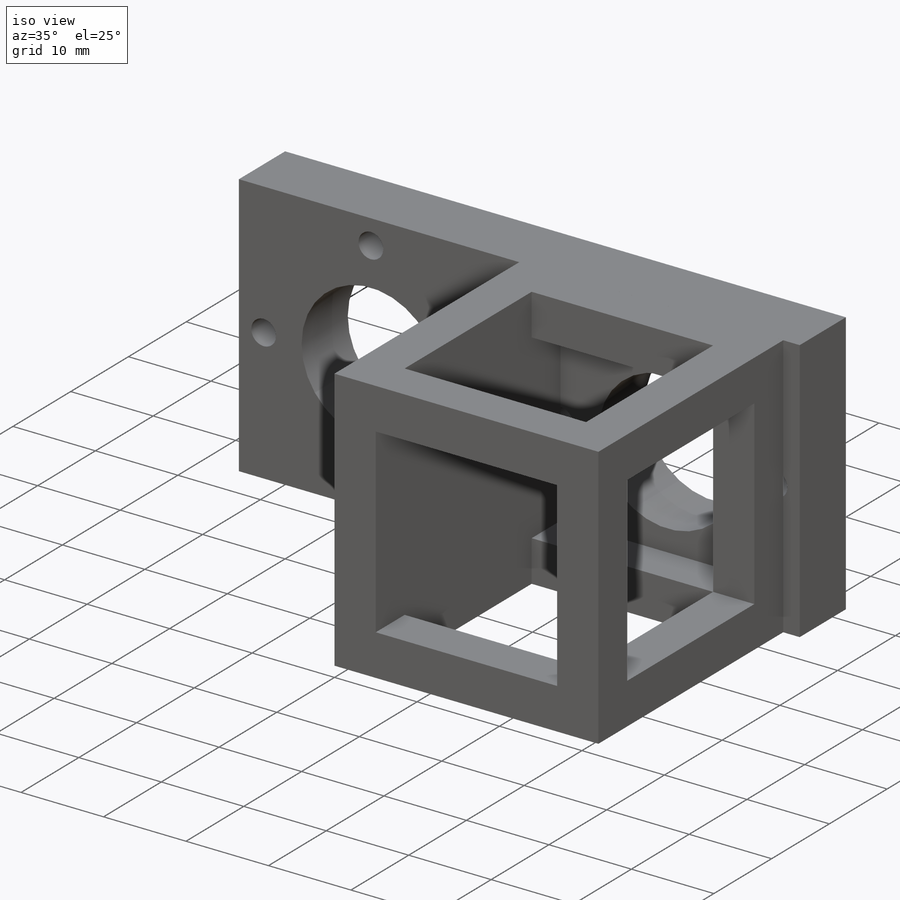
[diagram: iso view]
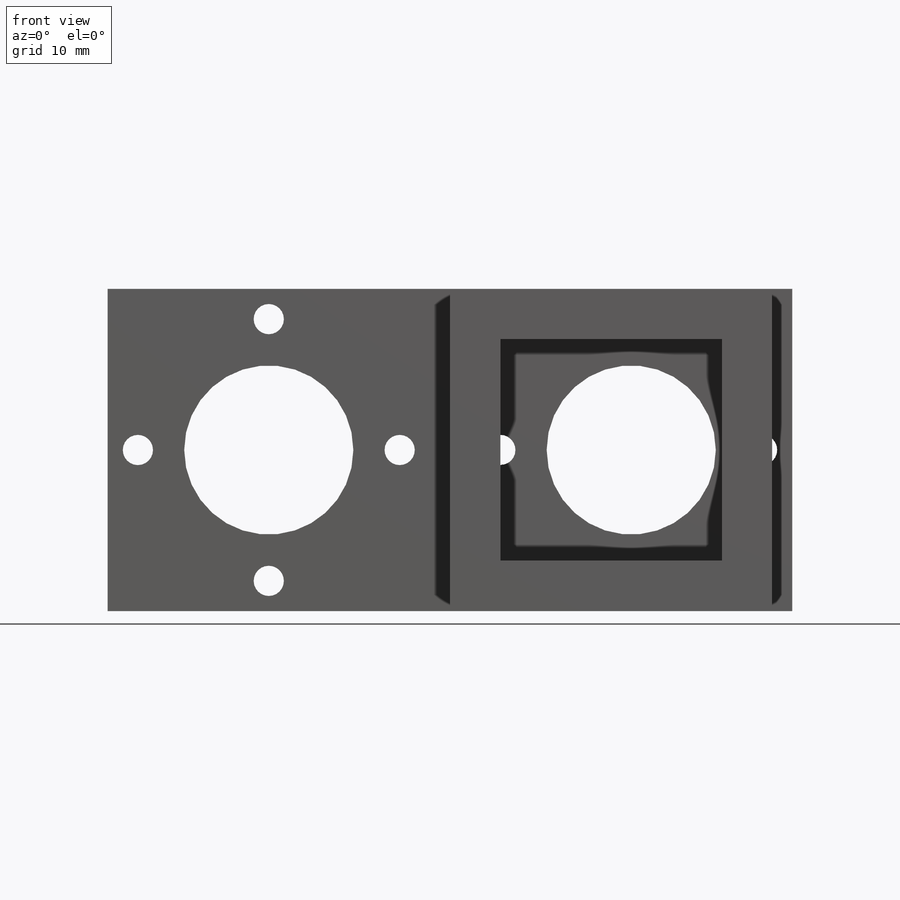
[diagram: front view]
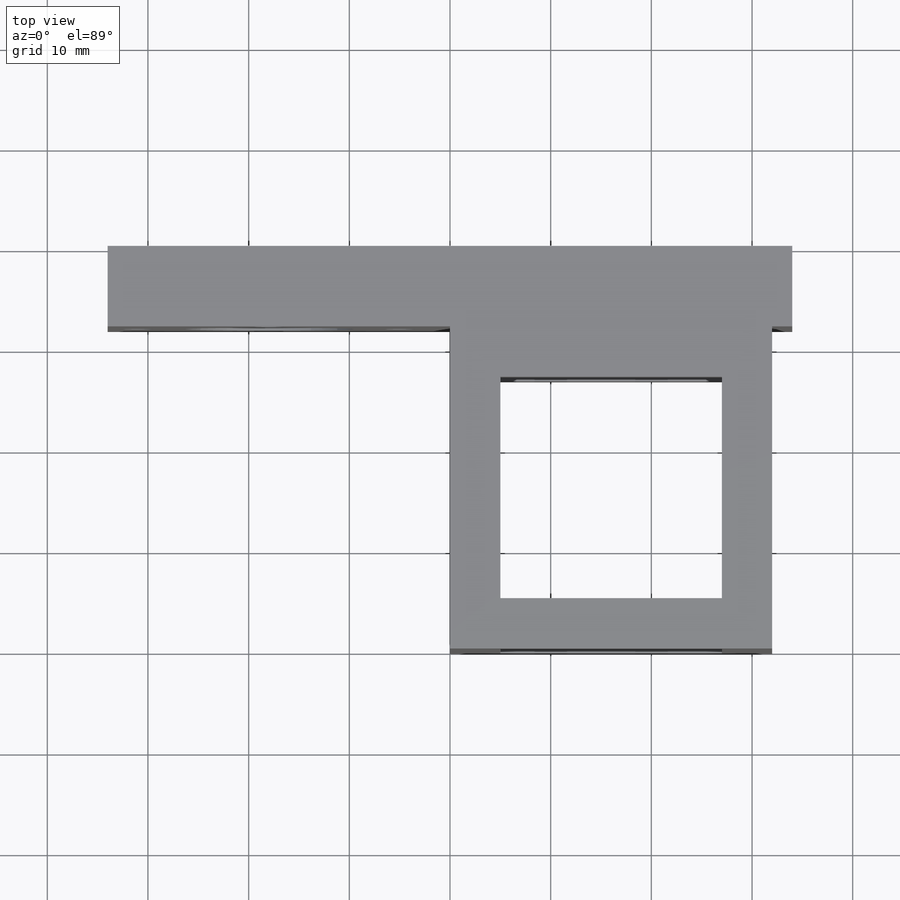
[diagram: top view]
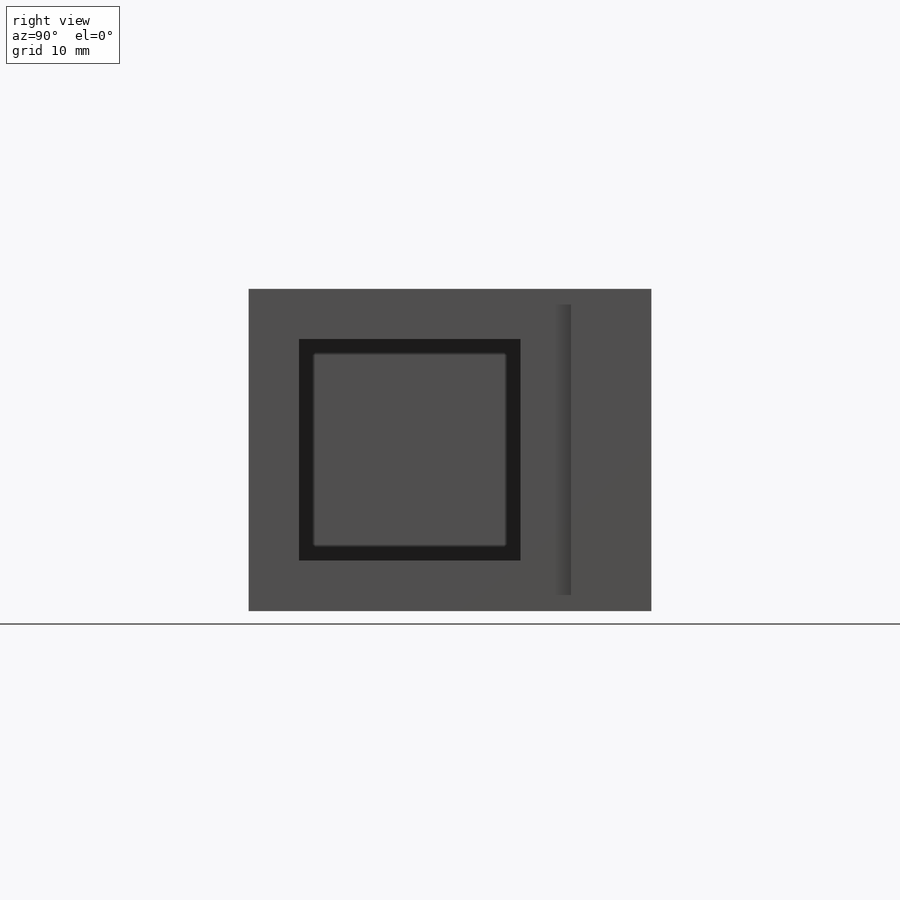
[diagram: right view]
SOLIDWORKS PART (.sldprt)
format: sldprt  version: not decoded by parser v0  size: 300,544 bytes
history: native  units: mm
features: sketch x6, plane x4, cut_extrude x4, extrude x2, material x1, pattern_circular x1, mirror x1 (+8 scaffold rows collapsed)
feature tree (27):
  scaffold x8  (default folders/planes/origin — collapsed)
  material  "Matériau <non spécifié>"
  plane  "Plan de face"
  plane  "Plan de dessus"
  plane  "Plan de droite"
  plane  "Plan For Main Circle"  Offset=18mm
  sketch  "Esquisse2"  dims[c1.D3=16.8mm c1.D4=~4.415054mm c1.D1=~30.797308mm c1.D2=~33.541059mm c2.D1=32.0mm c2.D2=34.0mm c2.D4=13.0mm]
  extrude  "Boss.-Extru.1"  Depth=8mm
  sketch  "Esquisse4"  dims[c1.D1=~2.246271mm c1.D2=3.0mm c2.D1=13.0mm]
  cut_extrude  "Enlèv. mat.-Extru.1"  [1 undecoded]
  pattern_circular  "Répétition circulaire1"  Count=4 Angle=90deg
  sketch  "Esquisse10"  dims[c1.D1=~19.539816mm c1.D2=~31.154157mm c2.D1=32.0mm]
  extrude  "Boss.-Extru.4"  Depth=32mm
  mirror  "Symétrie1"
  sketch  "Esquisse11"  dims[c1.D1=~4.802852mm c1.D2=~21.091358mm c2.D1=5.0mm c2.D2=5.0mm c2.D3=5.0mm c2.D4=5.0mm]
  sketch  "Esquisse12"  dims[c1.D1=~0.818625mm c1.D2=60.0mm c2.D1=5.0mm c2.D2=5.0mm c2.D3=5.0mm c2.D4=5.0mm]
  cut_extrude  "Enlèv. mat.-Extru.4"  Depth=18mm
  cut_extrude  "Enlèv. mat.-Extru.5"  [1 undecoded]
  sketch  "Esquisse13"  dims[c1.D1=~21.35611mm c1.D2=~23.014981mm c2.D1=5.0mm c2.D2=5.0mm c2.D3=5.0mm c2.D4=5.0mm]
  cut_extrude  "Enlèv. mat.-Extru.6"  [1 undecoded]
decode coverage: 10 of 14 modeling features carry decoded parameters
note: ~ marks probable driven/reference dimensions
note: 3 parameter values undecoded
summary: no parameter record found for 3 features
note: suppression state not decoded; provenance and decode notes live in map.json
